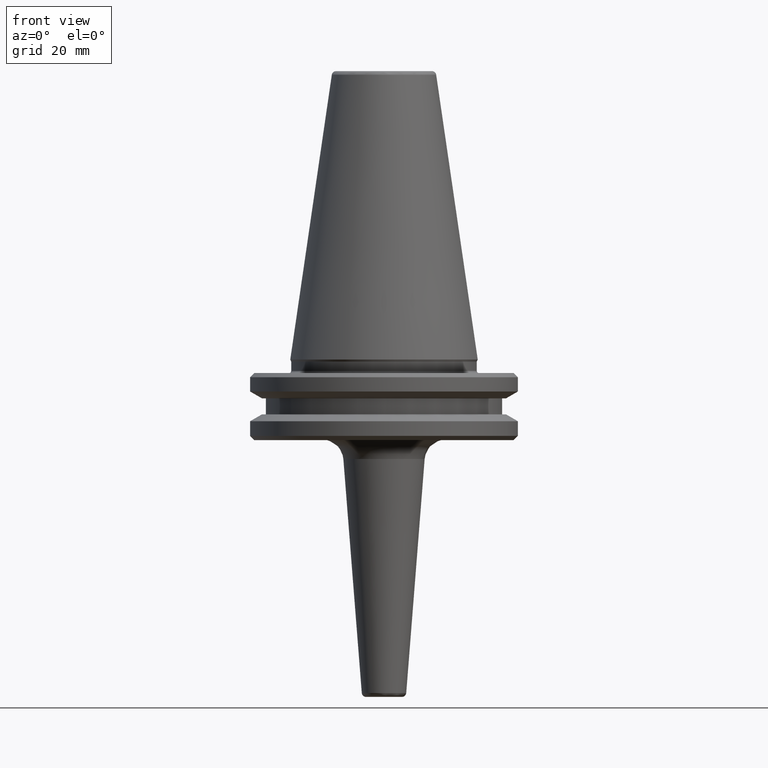
[diagram: clean part render]
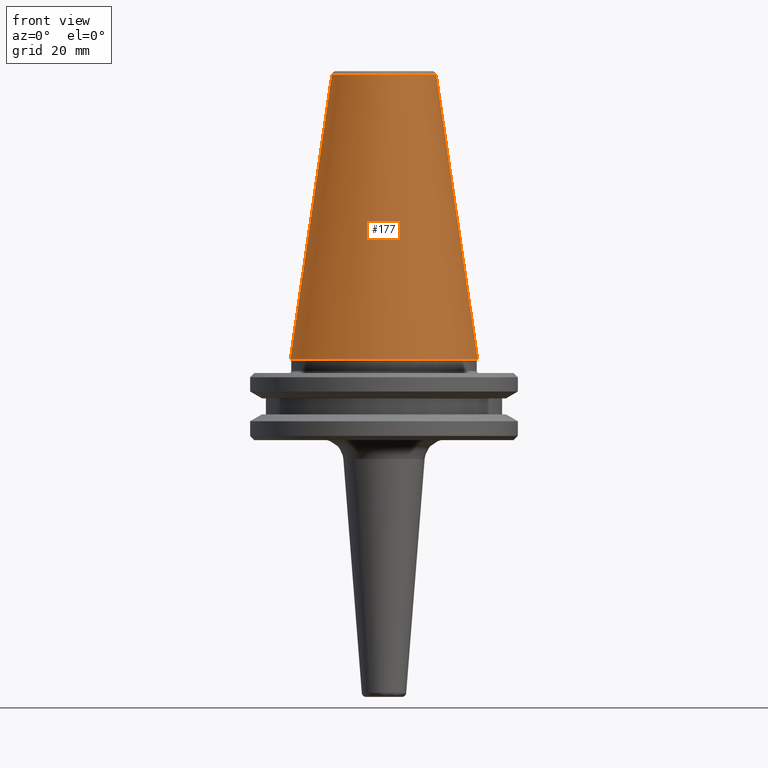
[diagram: same view with one face highlighted and labeled with its STEP entity id]
A machine part, front view. The second image highlights one B-rep face of the part: STEP entity #177.
In plain terms, the highlighted conical surface has half-angle 8.297 deg.
Its self-contained STEP definition (entity closure, byte-faithful):
#100 = CARTESIAN_POINT ( 'NONE',  ( 12.37469537611110800, 2.118620309691396900E-015, 67.54430822726729400 ) ) ;
#130 = DIRECTION ( 'NONE',  ( -1.000000000000000000, 0.0000000000000000000, 0.0000000000000000000 ) ) ;
#142 = ORIENTED_EDGE ( 'NONE', *, *, #772, .T. ) ;
#161 = ORIENTED_EDGE ( 'NONE', *, *, #1245, .T. ) ;
#177 = ADVANCED_FACE ( 'NONE', ( #1117 ), #843, .T. ) ;
#264 = VECTOR ( 'NONE', #698, 1000.000000000000000 ) ;
#299 = VERTEX_POINT ( 'NONE', #941 ) ;
#394 = AXIS2_PLACEMENT_3D ( 'NONE', #1022, #1019, #961 ) ;
#396 = CARTESIAN_POINT ( 'NONE',  ( 0.0000000000000000000, 0.0000000000000000000, 0.0000000000000000000 ) ) ;
#400 = VECTOR ( 'NONE', #625, 1000.000000000000000 ) ;
#415 = VERTEX_POINT ( 'NONE', #100 ) ;
#452 = VERTEX_POINT ( 'NONE', #1120 ) ;
#460 = DIRECTION ( 'NONE',  ( 0.0000000000000000000, 0.0000000000000000000, -1.000000000000000000 ) ) ;
#534 = EDGE_CURVE ( 'NONE', #415, #452, #1138, .T. ) ;
#546 = LINE ( 'NONE', #1285, #264 ) ;
#557 = EDGE_CURVE ( 'NONE', #415, #696, #679, .T. ) ;
#625 = DIRECTION ( 'NONE',  ( 0.1443082272673070500, 1.767266086135363700E-017, -0.9895327864921743500 ) ) ;
#679 = LINE ( 'NONE', #707, #400 ) ;
#696 = VERTEX_POINT ( 'NONE', #731 ) ;
#698 = DIRECTION ( 'NONE',  ( -0.1443082272673070500, 0.0000000000000000000, -0.9895327864921743500 ) ) ;
#707 = CARTESIAN_POINT ( 'NONE',  ( 22.22500000000000100, 2.721777511104992800E-015, 0.0000000000000000000 ) ) ;
#718 = ORIENTED_EDGE ( 'NONE', *, *, #534, .T. ) ;
#731 = CARTESIAN_POINT ( 'NONE',  ( 22.22500000000000500, 0.0000000000000000000, 0.0000000000000000000 ) ) ;
#772 = EDGE_CURVE ( 'NONE', #452, #299, #546, .T. ) ;
#843 = CONICAL_SURFACE ( 'NONE', #1086, 22.22500000000000100, 0.1448138465474190500 ) ;
#899 = EDGE_LOOP ( 'NONE', ( #967, #718, #142, #161 ) ) ;
#905 = CIRCLE ( 'NONE', #394, 22.22500000000000100 ) ;
#941 = CARTESIAN_POINT ( 'NONE',  ( -22.22500000000000500, 2.721777511104993200E-015, 0.0000000000000000000 ) ) ;
#944 = DIRECTION ( 'NONE',  ( -1.000000000000000000, 0.0000000000000000000, 0.0000000000000000000 ) ) ;
#961 = DIRECTION ( 'NONE',  ( -1.000000000000000000, 0.0000000000000000000, 6.244223985518314900E-016 ) ) ;
#967 = ORIENTED_EDGE ( 'NONE', *, *, #557, .F. ) ;
#1008 = DIRECTION ( 'NONE',  ( 0.0000000000000000000, 0.0000000000000000000, -1.000000000000000000 ) ) ;
#1014 = CARTESIAN_POINT ( 'NONE',  ( 0.0000000000000000000, 0.0000000000000000000, 67.54430822726729400 ) ) ;
#1019 = DIRECTION ( 'NONE',  ( -0.0000000000000000000, -0.0000000000000000000, 1.000000000000000000 ) ) ;
#1022 = CARTESIAN_POINT ( 'NONE',  ( 0.0000000000000000000, 0.0000000000000000000, 0.0000000000000000000 ) ) ;
#1086 = AXIS2_PLACEMENT_3D ( 'NONE', #396, #460, #130 ) ;
#1117 = FACE_OUTER_BOUND ( 'NONE', #899, .T. ) ;
#1120 = CARTESIAN_POINT ( 'NONE',  ( -12.37469537611110800, 0.0000000000000000000, 67.54430822726729400 ) ) ;
#1138 = CIRCLE ( 'NONE', #1283, 12.37469537611110800 ) ;
#1245 = EDGE_CURVE ( 'NONE', #299, #696, #905, .T. ) ;
#1283 = AXIS2_PLACEMENT_3D ( 'NONE', #1014, #1008, #944 ) ;
#1285 = CARTESIAN_POINT ( 'NONE',  ( -22.22500000000000100, 0.0000000000000000000, 0.0000000000000000000 ) ) ;